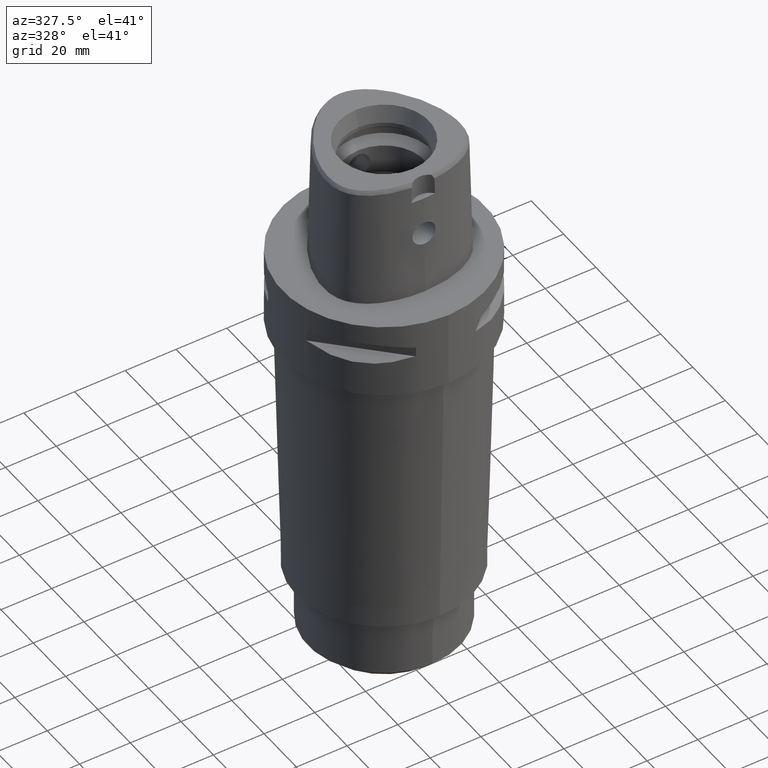
[diagram: clean part render]
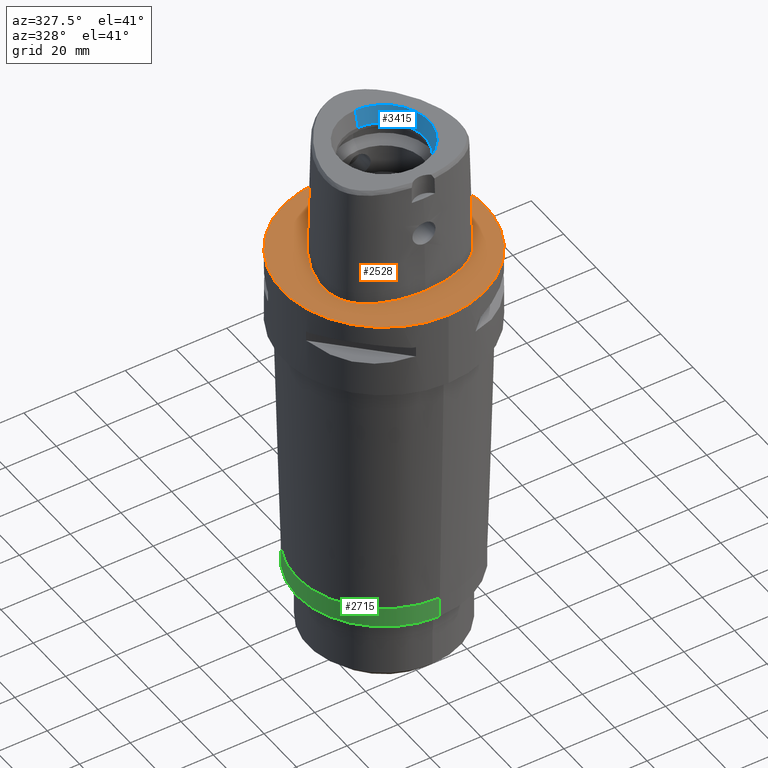
[diagram: same view with three faces highlighted in distinct colors, each labeled with its STEP entity id]
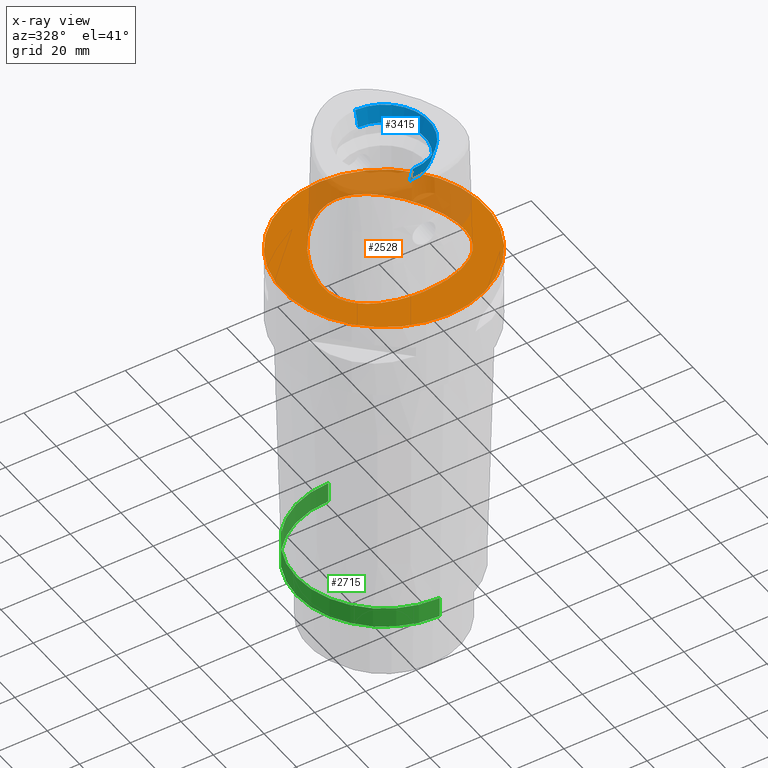
[diagram: x-ray of the same camera — body ghosted, the three highlighted faces saturated]
A machine part, auxiliary view with three faces highlighted in distinct colors.
The next image is the same camera in x-ray (body ghosted, the three faces saturated) — at least one of them is partly hidden behind the body in this view.
Their STEP definitions:

[orange] entity #2528 — the highlighted planar face has unit normal (0, 0, -1).
#276=CARTESIAN_POINT('',(0.E0,0.E0,0.E0));
#277=DIRECTION('',(0.E0,0.E0,-1.E0));
#278=DIRECTION('',(0.E0,-1.E0,0.E0));
#279=AXIS2_PLACEMENT_3D('',#276,#277,#278);
#284=CARTESIAN_POINT('',(0.E0,0.E0,0.E0));
#285=DIRECTION('',(0.E0,0.E0,-1.E0));
#286=DIRECTION('',(0.E0,1.E0,0.E0));
#287=AXIS2_PLACEMENT_3D('',#284,#285,#286);
#292=CARTESIAN_POINT('',(-1.066322295514E-11,-2.5575E1,7.242354863971E-14));
#293=CARTESIAN_POINT('',(1.299512914374E0,-2.5575E1,7.242354863971E-14));
#294=CARTESIAN_POINT('',(3.828891737299E0,-2.547273084847E1,
-3.361188589770E-14));
#295=CARTESIAN_POINT('',(7.452281936901E0,-2.503972570486E1,0.E0));
#296=CARTESIAN_POINT('',(1.079035103972E1,-2.436233344926E1,0.E0));
#297=CARTESIAN_POINT('',(1.375604629003E1,-2.349760365754E1,0.E0));
#298=CARTESIAN_POINT('',(1.633495858736E1,-2.249798852006E1,0.E0));
#299=CARTESIAN_POINT('',(1.854822313696E1,-2.140386432149E1,0.E0));
#300=CARTESIAN_POINT('',(2.042718100825E1,-2.024713327651E1,0.E0));
#301=CARTESIAN_POINT('',(2.201751114381E1,-1.904249655730E1,0.E0));
#302=CARTESIAN_POINT('',(2.334725096820E1,-1.780754809610E1,0.E0));
#303=CARTESIAN_POINT('',(2.445182619670E1,-1.654775966174E1,0.E0));
#304=CARTESIAN_POINT('',(2.537402335765E1,-1.524052565076E1,0.E0));
#305=CARTESIAN_POINT('',(2.613132227153E1,-1.386823985495E1,0.E0));
#306=CARTESIAN_POINT('',(2.675428138021E1,-1.237962276499E1,0.E0));
#307=CARTESIAN_POINT('',(2.724713763813E1,-1.074287490997E1,0.E0));
#308=CARTESIAN_POINT('',(2.760224136212E1,-8.905745881523E0,0.E0));
#309=CARTESIAN_POINT('',(2.779140065741E1,-6.852282846749E0,0.E0));
#310=CARTESIAN_POINT('',(2.778359299836E1,-4.558846426101E0,0.E0));
#311=CARTESIAN_POINT('',(2.753980840209E1,-2.002375639615E0,0.E0));
#312=CARTESIAN_POINT('',(2.701500946951E1,8.272514192074E-1,0.E0));
#313=CARTESIAN_POINT('',(2.616610560913E1,3.911599665835E0,0.E0));
#314=CARTESIAN_POINT('',(2.496121277058E1,7.200845263342E0,0.E0));
#315=CARTESIAN_POINT('',(2.339571358272E1,1.059776959716E1,0.E0));
#316=CARTESIAN_POINT('',(2.151168577758E1,1.395516062829E1,0.E0));
#317=CARTESIAN_POINT('',(1.940374788127E1,1.710012164754E1,0.E0));
#318=CARTESIAN_POINT('',(1.717344927805E1,1.991097410857E1,0.E0));
#319=CARTESIAN_POINT('',(1.492012389289E1,2.231673305241E1,0.E0));
#320=CARTESIAN_POINT('',(1.271143594534E1,2.430894694186E1,0.E0));
#321=CARTESIAN_POINT('',(1.058779367883E1,2.591225331814E1,0.E0));
#322=CARTESIAN_POINT('',(8.573367583211E0,2.716442609768E1,0.E0));
#323=CARTESIAN_POINT('',(6.669634307141E0,2.811279282345E1,0.E0));
#324=CARTESIAN_POINT('',(4.871344853576E0,2.879918582831E1,0.E0));
#325=CARTESIAN_POINT('',(3.166116559937E0,2.925914789692E1,0.E0));
#326=CARTESIAN_POINT('',(1.547538607096E0,2.951972674597E1,
-3.058904894420E-14));
#327=CARTESIAN_POINT('',(5.082248882185E-1,2.957499999999E1,
6.591024022858E-14));
#328=CARTESIAN_POINT('',(2.898947422903E-11,2.957499999999E1,
6.591024022858E-14));
#333=CARTESIAN_POINT('',(2.898947422903E-11,2.957499999999E1,
6.591024022858E-14));
#334=CARTESIAN_POINT('',(-5.085062349209E-1,2.9575E1,6.591024022858E-14));
#335=CARTESIAN_POINT('',(-1.548139734810E0,2.951971631919E1,
-3.058904894420E-14));
#336=CARTESIAN_POINT('',(-3.167848878827E0,2.925872341960E1,0.E0));
#337=CARTESIAN_POINT('',(-4.870717977772E0,2.879939800612E1,0.E0));
#338=CARTESIAN_POINT('',(-6.670741727728E0,2.811225986336E1,0.E0));
#339=CARTESIAN_POINT('',(-8.570375519773E0,2.716598776336E1,0.E0));
#340=CARTESIAN_POINT('',(-1.058429466400E1,2.591460362164E1,0.E0));
#341=CARTESIAN_POINT('',(-1.270455860233E1,2.431444834945E1,0.E0));
#342=CARTESIAN_POINT('',(-1.491046677744E1,2.232611705295E1,0.E0));
#343=CARTESIAN_POINT('',(-1.716125316597E1,1.992478765881E1,0.E0));
#344=CARTESIAN_POINT('',(-1.938690070453E1,1.712303275100E1,0.E0));
#345=CARTESIAN_POINT('',(-2.149642898577E1,1.397982467357E1,0.E0));
#346=CARTESIAN_POINT('',(-2.337847003966E1,1.063102606814E1,0.E0));
#347=CARTESIAN_POINT('',(-2.494493242067E1,7.239780919702E0,0.E0));
#348=CARTESIAN_POINT('',(-2.615131853205E1,3.956783706279E0,0.E0));
#349=CARTESIAN_POINT('',(-2.700291441922E1,8.786767142078E-1,0.E0));
#350=CARTESIAN_POINT('',(-2.753209449647E1,-1.949096737297E0,0.E0));
#351=CARTESIAN_POINT('',(-2.778074057574E1,-4.504339012738E0,0.E0));
#352=CARTESIAN_POINT('',(-2.779345038050E1,-6.800772457150E0,0.E0));
#353=CARTESIAN_POINT('',(-2.760964258612E1,-8.852136542298E0,0.E0));
#354=CARTESIAN_POINT('',(-2.725877354195E1,-1.069623742099E1,0.E0));
#355=CARTESIAN_POINT('',(-2.676676574599E1,-1.234619952345E1,0.E0));
#356=CARTESIAN_POINT('',(-2.613815819785E1,-1.385626424748E1,0.E0));
#357=CARTESIAN_POINT('',(-2.537013491173E1,-1.524726729398E1,0.E0));
#358=CARTESIAN_POINT('',(-2.444879293855E1,-1.655150819178E1,0.E0));
#359=CARTESIAN_POINT('',(-2.334226155975E1,-1.781241113682E1,0.E0));
#360=CARTESIAN_POINT('',(-2.202154035641E1,-1.903872562238E1,0.E0));
#361=CARTESIAN_POINT('',(-2.043250652659E1,-2.024360493031E1,0.E0));
#362=CARTESIAN_POINT('',(-1.855293803595E1,-2.140129391176E1,0.E0));
#363=CARTESIAN_POINT('',(-1.633918775867E1,-2.249616417234E1,0.E0));
#364=CARTESIAN_POINT('',(-1.375999224466E1,-2.349629424068E1,0.E0));
#365=CARTESIAN_POINT('',(-1.079368137961E1,-2.436154427010E1,0.E0));
#366=CARTESIAN_POINT('',(-7.453864953538E0,-2.503957868807E1,0.E0));
#367=CARTESIAN_POINT('',(-3.826247850546E0,-2.547298823258E1,
-3.361188589770E-14));
#368=CARTESIAN_POINT('',(-1.298255885036E0,-2.5575E1,7.242354863971E-14));
#369=CARTESIAN_POINT('',(-1.066322295514E-11,-2.5575E1,7.242354863971E-14));
#1609=VERTEX_POINT('',#333);
#1610=VERTEX_POINT('',#369);
#1615=CARTESIAN_POINT('',(0.E0,-4.E1,0.E0));
#1616=CARTESIAN_POINT('',(0.E0,4.E1,0.E0));
#1617=VERTEX_POINT('',#1615);
#1618=VERTEX_POINT('',#1616);
#2512=CARTESIAN_POINT('',(0.E0,0.E0,0.E0));
#2513=DIRECTION('',(0.E0,0.E0,-1.E0));
#2514=DIRECTION('',(0.E0,-1.E0,0.E0));
#2515=AXIS2_PLACEMENT_3D('',#2512,#2513,#2514);
#2516=PLANE('',#2515);
#2518=ORIENTED_EDGE('',*,*,#2517,.T.);
#2520=ORIENTED_EDGE('',*,*,#2519,.T.);
#2521=EDGE_LOOP('',(#2518,#2520));
#2522=FACE_OUTER_BOUND('',#2521,.F.);
#2524=ORIENTED_EDGE('',*,*,#2523,.T.);
#2525=ORIENTED_EDGE('',*,*,#2495,.T.);
#2526=EDGE_LOOP('',(#2524,#2525));
#2527=FACE_BOUND('',#2526,.F.);
#280=CIRCLE('',#279,4.E1);
#288=CIRCLE('',#287,4.E1);
#329=B_SPLINE_CURVE_WITH_KNOTS('',3,(#292,#293,#294,#295,#296,#297,#298,#299,
#300,#301,#302,#303,#304,#305,#306,#307,#308,#309,#310,#311,#312,#313,#314,#315,
#316,#317,#318,#319,#320,#321,#322,#323,#324,#325,#326,#327,#328),.UNSPECIFIED.,
.F.,.F.,(4,1,1,1,1,1,1,1,1,1,1,1,1,1,1,1,1,1,1,1,1,1,1,1,1,1,1,1,1,1,1,1,1,1,4),
(0.E0,2.941176470588E-2,5.882352941176E-2,8.823529411765E-2,1.176470588235E-1,
1.470588235294E-1,1.764705882353E-1,2.058823529412E-1,2.352941176471E-1,
2.647058823529E-1,2.941176470588E-1,3.235294117647E-1,3.529411764706E-1,
3.823529411765E-1,4.117647058824E-1,4.411764705882E-1,4.705882352941E-1,5.E-1,
5.294117647059E-1,5.588235294118E-1,5.882352941176E-1,6.176470588235E-1,
6.470588235294E-1,6.764705882353E-1,7.058823529412E-1,7.352941176471E-1,
7.647058823529E-1,7.941176470588E-1,8.235294117647E-1,8.529411764706E-1,
8.823529411765E-1,9.117647058824E-1,9.411764705882E-1,9.705882352941E-1,1.E0),
.UNSPECIFIED.);
#370=B_SPLINE_CURVE_WITH_KNOTS('',3,(#333,#334,#335,#336,#337,#338,#339,#340,
#341,#342,#343,#344,#345,#346,#347,#348,#349,#350,#351,#352,#353,#354,#355,#356,
#357,#358,#359,#360,#361,#362,#363,#364,#365,#366,#367,#368,#369),.UNSPECIFIED.,
.F.,.F.,(4,1,1,1,1,1,1,1,1,1,1,1,1,1,1,1,1,1,1,1,1,1,1,1,1,1,1,1,1,1,1,1,1,1,4),
(0.E0,2.941176470588E-2,5.882352941176E-2,8.823529411765E-2,1.176470588235E-1,
1.470588235294E-1,1.764705882353E-1,2.058823529412E-1,2.352941176471E-1,
2.647058823529E-1,2.941176470588E-1,3.235294117647E-1,3.529411764706E-1,
3.823529411765E-1,4.117647058824E-1,4.411764705882E-1,4.705882352941E-1,5.E-1,
5.294117647059E-1,5.588235294118E-1,5.882352941176E-1,6.176470588235E-1,
6.470588235294E-1,6.764705882353E-1,7.058823529412E-1,7.352941176471E-1,
7.647058823529E-1,7.941176470588E-1,8.235294117647E-1,8.529411764706E-1,
8.823529411765E-1,9.117647058824E-1,9.411764705882E-1,9.705882352941E-1,1.E0),
.UNSPECIFIED.);
#2495=EDGE_CURVE('',#1609,#1610,#370,.T.);
#2517=EDGE_CURVE('',#1617,#1618,#280,.T.);
#2519=EDGE_CURVE('',#1618,#1617,#288,.T.);
#2523=EDGE_CURVE('',#1610,#1609,#329,.T.);
#2528=ADVANCED_FACE('',(#2522,#2527),#2516,.F.);

[blue] entity #3415 — the highlighted conical surface has half-angle 15 deg.
#117=CARTESIAN_POINT('',(0.E0,0.E0,4.8E1));
#118=DIRECTION('',(0.E0,0.E0,1.E0));
#119=DIRECTION('',(0.E0,-1.E0,0.E0));
#120=AXIS2_PLACEMENT_3D('',#117,#118,#119);
#1271=DIRECTION('',(0.E0,-2.588190451026E-1,9.659258262891E-1));
#1272=VECTOR('',#1271,6.625767554625E0);
#1273=CARTESIAN_POINT('',(0.E0,-1.6E1,4.16E1));
#1274=LINE('',#1273,#1272);
#1278=CARTESIAN_POINT('',(0.E0,0.E0,4.16E1));
#1279=DIRECTION('',(0.E0,0.E0,1.E0));
#1280=DIRECTION('',(0.E0,-1.E0,0.E0));
#1281=AXIS2_PLACEMENT_3D('',#1278,#1279,#1280);
#1286=DIRECTION('',(0.E0,2.588190451026E-1,9.659258262891E-1));
#1287=VECTOR('',#1286,6.625767554625E0);
#1288=CARTESIAN_POINT('',(0.E0,1.6E1,4.16E1));
#1289=LINE('',#1288,#1287);
#1598=CARTESIAN_POINT('',(0.E0,1.771487483156E1,4.8E1));
#1599=CARTESIAN_POINT('',(0.E0,-1.771487483156E1,4.8E1));
#1600=VERTEX_POINT('',#1598);
#1601=VERTEX_POINT('',#1599);
#1772=CARTESIAN_POINT('',(0.E0,-1.6E1,4.16E1));
#1773=VERTEX_POINT('',#1772);
#1774=CARTESIAN_POINT('',(0.E0,1.6E1,4.16E1));
#1775=VERTEX_POINT('',#1774);
#3404=CARTESIAN_POINT('',(0.E0,0.E0,4.48E1));
#3405=DIRECTION('',(0.E0,0.E0,1.E0));
#3406=DIRECTION('',(0.E0,1.E0,0.E0));
#3407=AXIS2_PLACEMENT_3D('',#3404,#3405,#3406);
#3408=CONICAL_SURFACE('',#3407,1.685743741578E1,1.5E1);
#3409=ORIENTED_EDGE('',*,*,#1791,.F.);
#3410=ORIENTED_EDGE('',*,*,#3399,.F.);
#3411=ORIENTED_EDGE('',*,*,#3372,.T.);
#3412=ORIENTED_EDGE('',*,*,#3396,.T.);
#3413=EDGE_LOOP('',(#3409,#3410,#3411,#3412));
#3414=FACE_OUTER_BOUND('',#3413,.F.);
#121=CIRCLE('',#120,1.771487483156E1);
#1282=CIRCLE('',#1281,1.6E1);
#1791=EDGE_CURVE('',#1601,#1600,#121,.T.);
#3372=EDGE_CURVE('',#1773,#1775,#1282,.T.);
#3396=EDGE_CURVE('',#1775,#1600,#1289,.T.);
#3399=EDGE_CURVE('',#1773,#1601,#1274,.T.);
#3415=ADVANCED_FACE('',(#3414),#3408,.F.);

[green] entity #2715 — the highlighted cylindrical surface (partial cylindrical patch) has radius 34.5 mm, axis along (0, 0, -1).
#572=CARTESIAN_POINT('',(0.E0,0.E0,-1.287E2));
#573=DIRECTION('',(0.E0,0.E0,-1.E0));
#574=DIRECTION('',(0.E0,-1.E0,0.E0));
#575=AXIS2_PLACEMENT_3D('',#572,#573,#574);
#580=DIRECTION('',(0.E0,1.152855588772E-12,-1.E0));
#581=VECTOR('',#580,7.999999999991E0);
#582=CARTESIAN_POINT('',(0.E0,-3.45E1,-1.287E2));
#583=LINE('',#582,#581);
#587=DIRECTION('',(0.E0,-1.154631945611E-12,-1.E0));
#588=VECTOR('',#587,7.999999999991E0);
#589=CARTESIAN_POINT('',(0.E0,3.45E1,-1.287E2));
#590=LINE('',#589,#588);
#617=CARTESIAN_POINT('',(0.E0,-1.695872396477E-14,-1.367E2));
#618=DIRECTION('',(0.E0,0.E0,1.E0));
#619=DIRECTION('',(0.E0,1.E0,0.E0));
#620=AXIS2_PLACEMENT_3D('',#617,#618,#619);
#1683=CARTESIAN_POINT('',(0.E0,3.45E1,-1.287E2));
#1684=VERTEX_POINT('',#1683);
#1685=CARTESIAN_POINT('',(0.E0,-3.45E1,-1.287E2));
#1686=VERTEX_POINT('',#1685);
#1687=CARTESIAN_POINT('',(0.E0,3.449999999999E1,-1.367E2));
#1688=VERTEX_POINT('',#1687);
#1689=CARTESIAN_POINT('',(0.E0,-3.449999999999E1,-1.367E2));
#1690=VERTEX_POINT('',#1689);
#2701=CARTESIAN_POINT('',(0.E0,0.E0,8.37E0));
#2702=DIRECTION('',(0.E0,0.E0,-1.E0));
#2703=DIRECTION('',(0.E0,-1.E0,0.E0));
#2704=AXIS2_PLACEMENT_3D('',#2701,#2702,#2703);
#2705=CYLINDRICAL_SURFACE('',#2704,3.45E1);
#2707=ORIENTED_EDGE('',*,*,#2706,.F.);
#2708=ORIENTED_EDGE('',*,*,#2696,.F.);
#2710=ORIENTED_EDGE('',*,*,#2709,.T.);
#2712=ORIENTED_EDGE('',*,*,#2711,.F.);
#2713=EDGE_LOOP('',(#2707,#2708,#2710,#2712));
#2714=FACE_OUTER_BOUND('',#2713,.F.);
#576=CIRCLE('',#575,3.45E1);
#621=CIRCLE('',#620,3.449999999998E1);
#2696=EDGE_CURVE('',#1686,#1684,#576,.T.);
#2706=EDGE_CURVE('',#1684,#1688,#590,.T.);
#2709=EDGE_CURVE('',#1686,#1690,#583,.T.);
#2711=EDGE_CURVE('',#1688,#1690,#621,.T.);
#2715=ADVANCED_FACE('',(#2714),#2705,.T.);